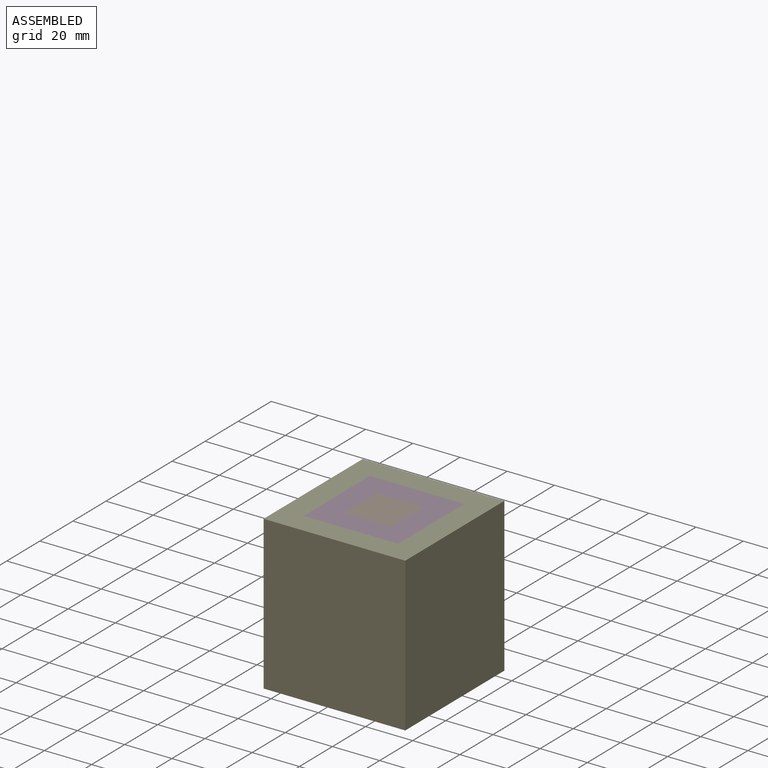
[diagram: assembled view]
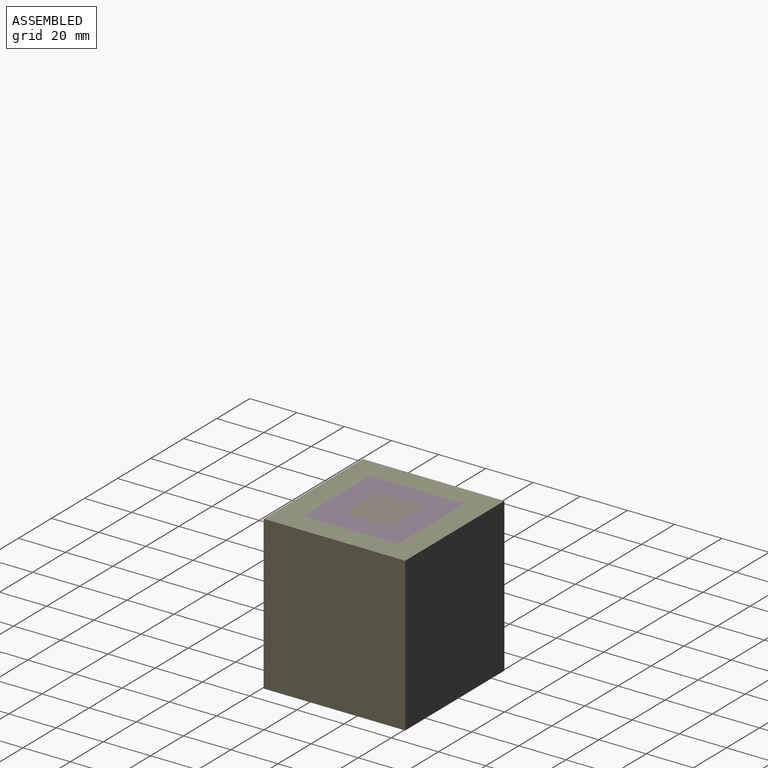
[diagram: assembled view, second angle]
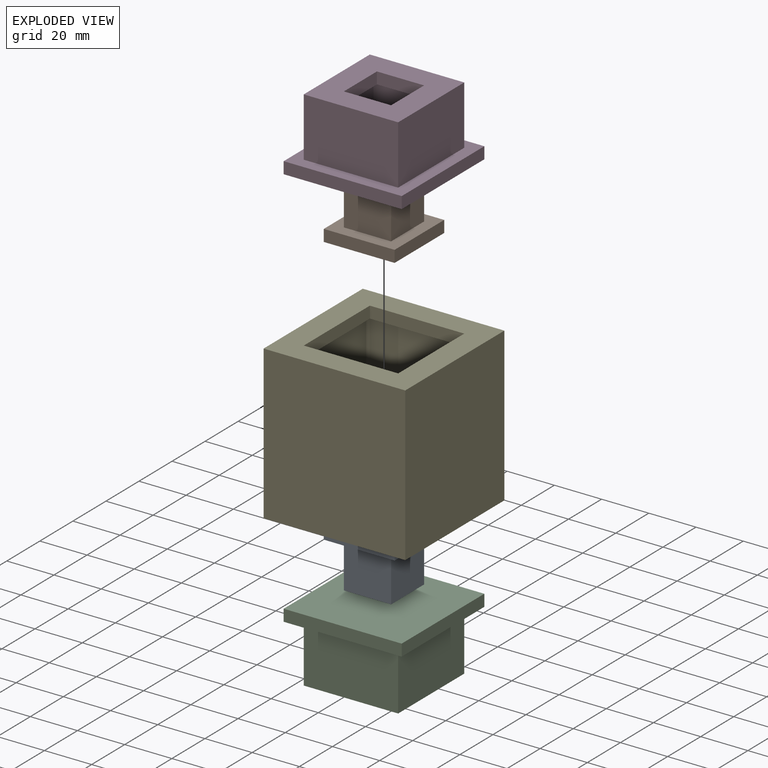
[diagram: exploded view]
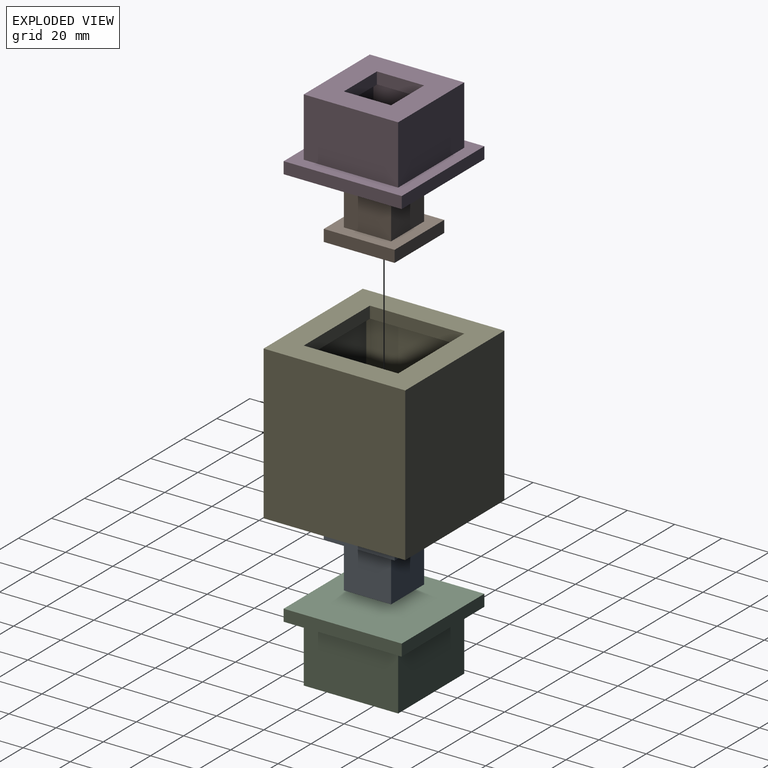
[diagram: exploded view, second angle]
ASSEMBLY  parts=5 mates=4
PART A: 11 faces, bbox 30x30x25 mm
  f0: plane 30x30mm, normal (0,0,-1), area 500mm2, adj f1,f2,f3,f4,f6,f7,f8,f9
  f1: plane 30x5mm, normal (-1,0,0), area 150mm2, adj f0,f2,f4,f5
  f2: plane 30x5mm, normal (0,-1,0), area 150mm2, adj f0,f1,f3,f5
  f3: plane 30x5mm, normal (1,0,0), area 150mm2, adj f0,f2,f4,f5
  f4: plane 30x5mm, normal (0,1,0), area 150mm2, adj f0,f1,f3,f5
  f5: plane 30x30mm, normal (0,0,1), area 900mm2, adj f1,f2,f3,f4
  f6: plane 20x20mm, normal (1,0,0), area 400mm2, adj f0,f7,f9,f10
  f7: plane 20x20mm, normal (0,1,0), area 400mm2, adj f0,f6,f8,f10
  f8: plane 20x20mm, normal (-1,0,0), area 400mm2, adj f0,f7,f9,f10
  f9: plane 20x20mm, normal (0,-1,0), area 400mm2, adj f0,f6,f8,f10
  f10: plane 20x20mm, normal (0,0,-1), area 400mm2, adj f6,f7,f8,f9
PART B: 11 faces, bbox 30x30x25 mm
  f0: plane 30x30mm, normal (0,0,1), area 500mm2, adj f1,f2,f3,f4,f6,f7,f8,f9
  f1: plane 30x5mm, normal (-1,0,0), area 150mm2, adj f0,f2,f4,f5
  f2: plane 30x5mm, normal (0,-1,0), area 150mm2, adj f0,f1,f3,f5
  f3: plane 30x5mm, normal (1,0,0), area 150mm2, adj f0,f2,f4,f5
  f4: plane 30x5mm, normal (0,1,0), area 150mm2, adj f0,f1,f3,f5
  f5: plane 30x30mm, normal (0,0,-1), area 900mm2, adj f1,f2,f3,f4
  f6: plane 20x20mm, normal (1,0,0), area 400mm2, adj f0,f7,f9,f10
  f7: plane 20x20mm, normal (0,1,0), area 400mm2, adj f0,f6,f8,f10
  f8: plane 20x20mm, normal (-1,0,0), area 400mm2, adj f0,f7,f9,f10
  f9: plane 20x20mm, normal (0,-1,0), area 400mm2, adj f0,f6,f8,f10
  f10: plane 20x20mm, normal (0,0,1), area 400mm2, adj f6,f7,f8,f9
PART C: 21 faces, bbox 50x50x30 mm
  f0: plane 40x40mm, normal (0,0,-1), area 1200mm2, adj f7,f8,f9,f10,f11,f12,f13,f14
  f1: plane 50x50mm, normal (0,0,-1), area 900mm2, adj f2,f3,f4,f5,f7,f8,f9,f10
  f2: plane 50x5mm, normal (1,0,0), area 250mm2, adj f1,f3,f5,f6
  f3: plane 50x5mm, normal (0,1,0), area 250mm2, adj f1,f2,f4,f6
  f4: plane 50x5mm, normal (-1,0,0), area 250mm2, adj f1,f3,f5,f6
  f5: plane 50x5mm, normal (0,-1,0), area 250mm2, adj f1,f2,f4,f6
  f6: plane 50x50mm, normal (0,0,1), area 2500mm2, adj f2,f3,f4,f5
  f7: plane 40x25mm, normal (1,0,0), area 1000mm2, adj f0,f1,f8,f10
  f8: plane 40x25mm, normal (0,1,0), area 1000mm2, adj f0,f1,f7,f9
  f9: plane 40x25mm, normal (-1,0,0), area 1000mm2, adj f0,f1,f8,f10
  f10: plane 40x25mm, normal (0,-1,0), area 1000mm2, adj f0,f1,f7,f9
  f11: plane 20x5mm, normal (-1,0,0), area 100mm2, adj f0,f12,f14,f15
  f12: plane 20x5mm, normal (0,-1,0), area 100mm2, adj f0,f11,f13,f15
  f13: plane 20x5mm, normal (1,0,0), area 100mm2, adj f0,f12,f14,f15
  f14: plane 20x5mm, normal (0,1,0), area 100mm2, adj f0,f11,f13,f15
  f15: plane 30x30mm, normal (0,0,1), area 500mm2, adj f11,f12,f13,f14,f17,f18,f19,f20
  f16: plane 30x30mm, normal (0,0,-1), area 900mm2, adj f17,f18,f19,f20
  f17: plane 30x20mm, normal (-1,0,0), area 600mm2, adj f15,f16,f18,f20
  f18: plane 30x20mm, normal (0,-1,0), area 600mm2, adj f15,f16,f17,f19
  f19: plane 30x20mm, normal (1,0,0), area 600mm2, adj f15,f16,f18,f20
  f20: plane 30x20mm, normal (0,1,0), area 600mm2, adj f15,f16,f17,f19
PART D: 21 faces, bbox 50x50x30 mm
  f0: plane 40x40mm, normal (0,0,1), area 1200mm2, adj f7,f8,f9,f10,f11,f12,f13,f14
  f1: plane 50x50mm, normal (0,0,1), area 900mm2, adj f2,f3,f4,f5,f7,f8,f9,f10
  f2: plane 50x5mm, normal (1,0,0), area 250mm2, adj f1,f3,f5,f6
  f3: plane 50x5mm, normal (0,1,0), area 250mm2, adj f1,f2,f4,f6
  f4: plane 50x5mm, normal (-1,0,0), area 250mm2, adj f1,f3,f5,f6
  f5: plane 50x5mm, normal (0,-1,0), area 250mm2, adj f1,f2,f4,f6
  f6: plane 50x50mm, normal (0,0,-1), area 2500mm2, adj f2,f3,f4,f5
  f7: plane 40x25mm, normal (1,0,0), area 1000mm2, adj f0,f1,f8,f10
  f8: plane 40x25mm, normal (0,1,0), area 1000mm2, adj f0,f1,f7,f9
  f9: plane 40x25mm, normal (-1,0,0), area 1000mm2, adj f0,f1,f8,f10
  f10: plane 40x25mm, normal (0,-1,0), area 1000mm2, adj f0,f1,f7,f9
  f11: plane 20x5mm, normal (-1,0,0), area 100mm2, adj f0,f12,f14,f15
  f12: plane 20x5mm, normal (0,-1,0), area 100mm2, adj f0,f11,f13,f15
  f13: plane 20x5mm, normal (1,0,0), area 100mm2, adj f0,f12,f14,f15
  f14: plane 20x5mm, normal (0,1,0), area 100mm2, adj f0,f11,f13,f15
  f15: plane 30x30mm, normal (0,0,-1), area 500mm2, adj f11,f12,f13,f14,f17,f18,f19,f20
  f16: plane 30x30mm, normal (0,0,1), area 900mm2, adj f17,f18,f19,f20
  f17: plane 30x20mm, normal (-1,0,0), area 600mm2, adj f15,f16,f18,f20
  f18: plane 30x20mm, normal (0,-1,0), area 600mm2, adj f15,f16,f17,f19
  f19: plane 30x20mm, normal (1,0,0), area 600mm2, adj f15,f16,f18,f20
  f20: plane 30x20mm, normal (0,1,0), area 600mm2, adj f15,f16,f17,f19
PART E: 26 faces, bbox 60x60x65 mm
  f0: plane 50x25mm, normal (-1,0,0), area 1250mm2, adj f1,f3,f5,f24
  f1: plane 50x25mm, normal (0,-1,0), area 1250mm2, adj f0,f2,f5,f24
  f2: plane 50x25mm, normal (1,0,0), area 1250mm2, adj f1,f3,f5,f24
  f3: plane 50x25mm, normal (0,1,0), area 1250mm2, adj f0,f2,f5,f24
  f4: plane 50x50mm, normal (0,0,-1), area 900mm2, adj f6,f7,f8,f9,f14,f15,f16,f17
  f5: plane 50x50mm, normal (0,0,1), area 900mm2, adj f0,f1,f2,f3,f10,f11,f12,f13
  f6: plane 50x25mm, normal (-1,0,0), area 1250mm2, adj f4,f7,f9,f25
  f7: plane 50x25mm, normal (0,-1,0), area 1250mm2, adj f4,f6,f8,f25
  f8: plane 50x25mm, normal (1,0,0), area 1250mm2, adj f4,f7,f9,f25
  f9: plane 50x25mm, normal (0,1,0), area 1250mm2, adj f4,f6,f8,f25
  f10: plane 40x5mm, normal (0,1,0), area 200mm2, adj f5,f11,f13,f19
  f11: plane 40x5mm, normal (1,0,0), area 200mm2, adj f5,f10,f12,f19
  f12: plane 40x5mm, normal (0,-1,0), area 200mm2, adj f5,f11,f13,f19
  f13: plane 40x5mm, normal (-1,0,0), area 200mm2, adj f5,f10,f12,f19
  f14: plane 40x5mm, normal (-1,0,0), area 200mm2, adj f4,f15,f17,f18
  f15: plane 40x5mm, normal (0,-1,0), area 200mm2, adj f4,f14,f16,f18
  f16: plane 40x5mm, normal (1,0,0), area 200mm2, adj f4,f15,f17,f18
  f17: plane 40x5mm, normal (0,1,0), area 200mm2, adj f4,f14,f16,f18
  f18: plane 60x60mm, normal (0,0,1), area 2000mm2, adj f14,f15,f16,f17,f20,f21,f22,f23
  f19: plane 60x60mm, normal (0,0,-1), area 2000mm2, adj f10,f11,f12,f13,f20,f21,f22,f23
  f20: plane 65x60mm, normal (1,0,0), area 3900mm2, adj f18,f19,f21,f23
  f21: plane 65x60mm, normal (0,1,0), area 3900mm2, adj f18,f19,f20,f22
  f22: plane 65x60mm, normal (-1,0,0), area 3900mm2, adj f18,f19,f21,f23
  f23: plane 65x60mm, normal (0,-1,0), area 3900mm2, adj f18,f19,f20,f22
  f24: plane 50x50mm, normal (0,0,-1), area 2500mm2, adj f0,f1,f2,f3
  f25: plane 50x50mm, normal (0,0,1), area 2500mm2, adj f6,f7,f8,f9
PLACE A t=(-14.9,-7.5,1.65)mm
PLACE B t=(-14.9,-7.5,1.65)mm
PLACE C t=(-14.9,-7.5,1.65)mm
PLACE D t=(-14.9,-7.5,1.65)mm
PLACE E t=(-14.9,-7.5,1.65)mm fixed
MATE slider E.f24 <-> C.f6  axis (0,0,-1) through (-39.9,-32.5,-0.85)mm
MATE slider D.f16 <-> B.f5  axis (0,0,1) through (-29.9,-22.5,9.15)mm
MATE slider E.f25 <-> D.f6  axis (0,0,1) through (-39.9,-32.5,4.15)mm
MATE slider C.f16 <-> A.f5  axis (0,0,-1) through (-29.9,-22.5,-5.85)mm
